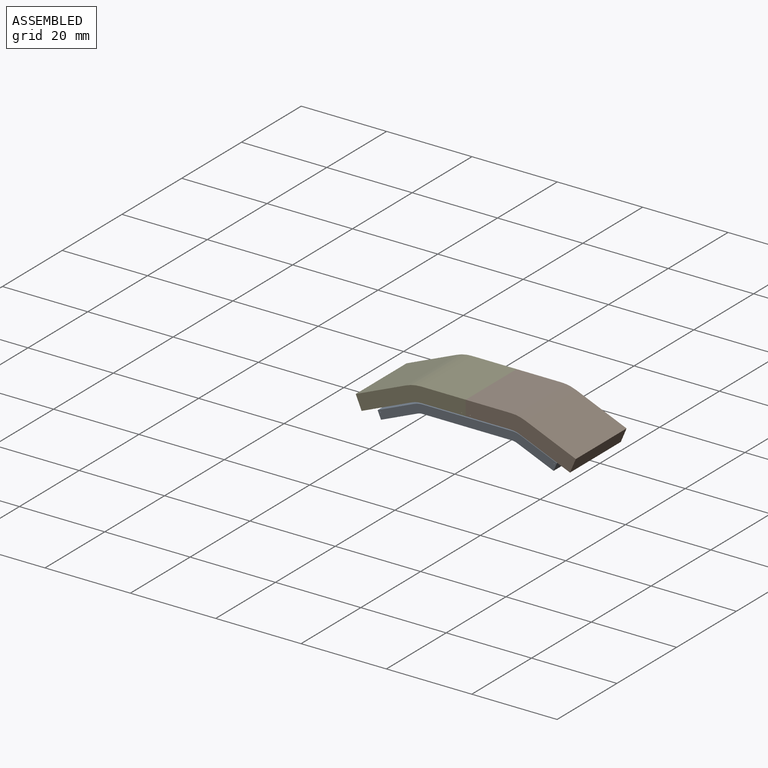
[diagram: assembled view]
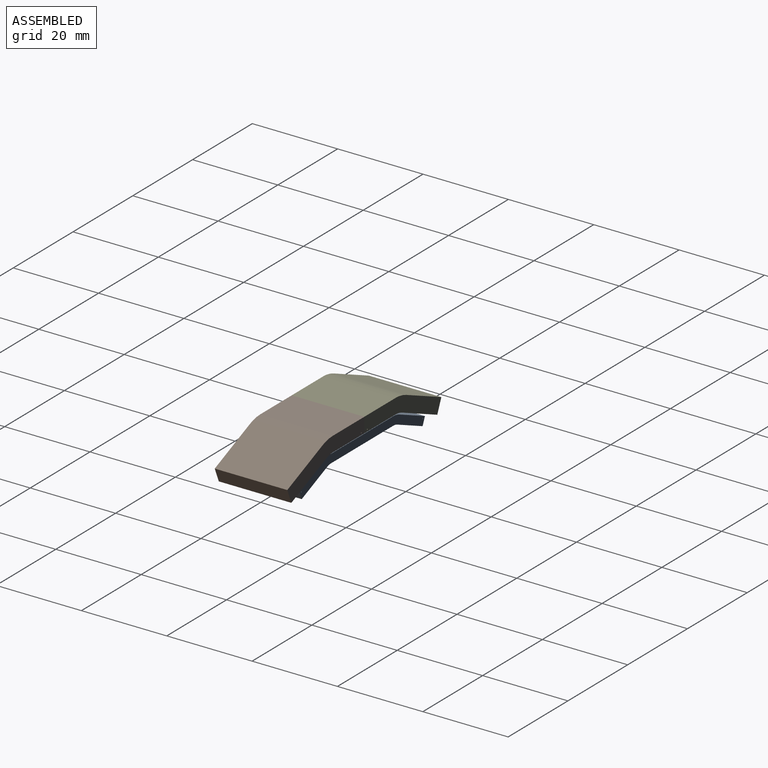
[diagram: assembled view, second angle]
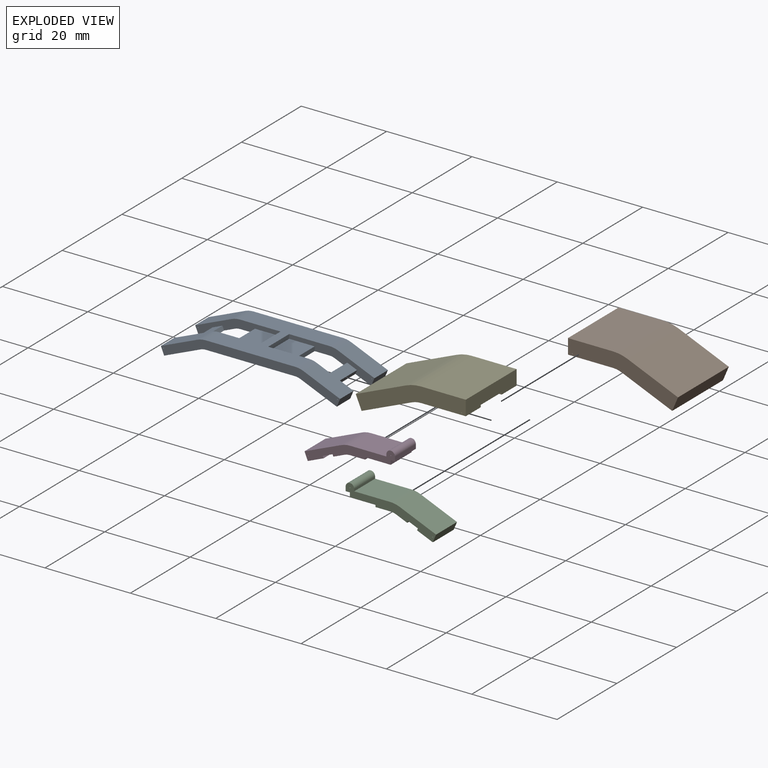
[diagram: exploded view]
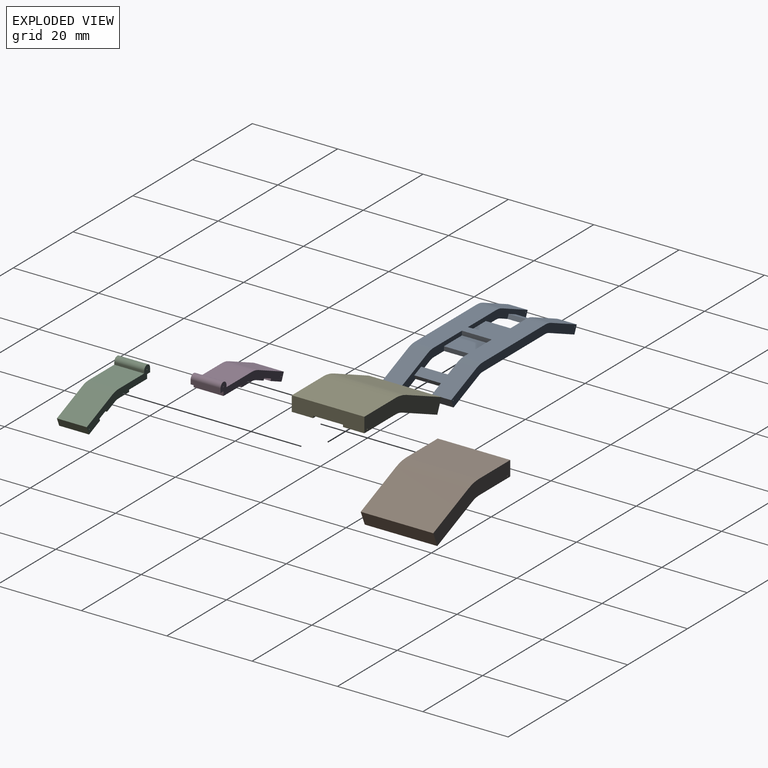
[diagram: exploded view, second angle]
ASSEMBLY  parts=5 mates=4
PART A: 42 faces, bbox 42x16x5.8 mm
  f0: plane 4.5x1.84mm, normal (0.92,0,-0.39), area 9mm2, adj f1,f22,f25,f40
  f1: plane 8.57x4.5mm, normal (0.39,0,0.92), area 41.8mm2, adj f0,f4,f25,f40
  f2: plane 8.57x4.5mm, normal (-0.39,0,0.92), area 41.8mm2, adj f3,f6,f25,f32
  f3: plane 4.5x1.84mm, normal (-0.92,0,-0.39), area 9mm2, adj f2,f18,f25,f32
  f4: cylinder r=5mm len=4.5mm, axis (0,1,0), area 9mm2, adj f1,f5,f25,f40
  f5: plane 20.98x16mm, normal (0,0,1), area 202.8mm2, adj f4,f6,f14,f15,f24,f25,f29,f32
  f6: cylinder r=5mm len=4.5mm, axis (0,1,0), area 9mm2, adj f2,f5,f25,f32
  f7: cylinder r=3mm len=4.5mm, axis (0,1,0), area 5.4mm2, adj f8,f18,f25,f32
  f8: plane 20.98x16mm, normal (0,0,-1), area 286.8mm2, adj f7,f9,f19,f20,f24,f25,f27,f32
  f9: cylinder r=3mm len=4.5mm, axis (0,1,0), area 5.4mm2, adj f8,f22,f25,f40
  f10: cylinder r=0.1mm len=4.5mm, axis (0,1,0), area 2.8mm2, adj f25,f40
  f11: cylinder r=0.1mm len=4.5mm, axis (0,1,0), area 2.8mm2, adj f25,f32
  f12: plane 4.5x1.84mm, normal (0.92,0,-0.39), area 9mm2, adj f13,f22,f24,f41
  f13: plane 8.57x4.5mm, normal (0.39,0,0.92), area 41.8mm2, adj f12,f14,f24,f41
  f14: cylinder r=5mm len=4.5mm, axis (0,1,0), area 9mm2, adj f5,f13,f24,f41
  f15: cylinder r=5mm len=4.5mm, axis (0,1,0), area 9mm2, adj f5,f16,f24,f33
  f16: plane 8.57x4.5mm, normal (-0.39,0,0.92), area 41.8mm2, adj f15,f17,f24,f33
  f17: plane 4.5x1.84mm, normal (-0.92,0,-0.39), area 9mm2, adj f16,f18,f24,f33
  f18: plane 16x8.57mm, normal (0.39,0,-0.92), area 101.2mm2, adj f3,f7,f17,f19,f24,f25,f26,f30
  f19: cylinder r=3mm len=4.5mm, axis (0,1,0), area 5.4mm2, adj f8,f18,f24,f33
  f20: cylinder r=3mm len=4.5mm, axis (0,1,0), area 5.4mm2, adj f8,f22,f24,f41
  f21: cylinder r=0.1mm len=4.5mm, axis (0,1,0), area 2.8mm2, adj f24,f41
  f22: plane 16x8.57mm, normal (-0.39,0,-0.92), area 101.2mm2, adj f0,f9,f12,f20,f24,f25,f34,f36
  f23: cylinder r=0.1mm len=4.5mm, axis (0,1,0), area 2.8mm2, adj f24,f33
  f24: plane 42x5.84mm, normal (0,-1,0), area 85.5mm2, adj f5,f8,f12,f13,f14,f15,f16,f17
  f25: plane 42x5.84mm, normal (0,1,0), area 85.5mm2, adj f0,f1,f2,f3,f4,f5,f6,f7
  f26: plane 7x0.92mm, normal (0.92,0,0.39), area 7mm2, adj f18,f31,f32,f33
  f27: plane 7x1mm, normal (-1,0,0), area 7mm2, adj f8,f28,f32,f33
  f28: plane 7x6mm, normal (0,0,1), area 42mm2, adj f27,f29,f32,f33
  f29: plane 7x1mm, normal (-1,0,0), area 7mm2, adj f5,f28,f32,f33
  f30: plane 7x0.92mm, normal (-0.92,0,-0.39), area 7mm2, adj f18,f31,f32,f33
  f31: plane 7x2.3mm, normal (-0.39,0,0.92), area 17.5mm2, adj f26,f30,f32,f33
  f32: plane 20x5.84mm, normal (0,-1,0), area 32.2mm2, adj f2,f3,f5,f6,f7,f8,f11,f18
  f33: plane 20x5.84mm, normal (0,1,0), area 32.2mm2, adj f5,f8,f15,f16,f17,f18,f19,f23
  f34: plane 7x0.92mm, normal (-0.92,0,0.39), area 7mm2, adj f22,f35,f40,f41
  f35: plane 7x2.3mm, normal (0.39,0,0.92), area 17.5mm2, adj f34,f36,f40,f41
  f36: plane 7x0.92mm, normal (0.92,0,-0.39), area 7mm2, adj f22,f35,f40,f41
  f37: plane 7x1mm, normal (1,0,0), area 7mm2, adj f5,f38,f40,f41
  f38: plane 7x6mm, normal (0,0,1), area 42mm2, adj f37,f39,f40,f41
  f39: plane 7x1mm, normal (1,0,0), area 7mm2, adj f8,f38,f40,f41
  f40: plane 20x5.84mm, normal (0,-1,0), area 32.2mm2, adj f0,f1,f4,f5,f8,f9,f10,f22
  f41: plane 20x5.84mm, normal (0,1,0), area 32.2mm2, adj f5,f8,f12,f13,f14,f20,f21,f22
PART B: 16 faces, bbox 25.8x17x8.9 mm
  f0: cylinder r=0.1mm len=5mm, axis (0,1,0), area 3.1mm2, adj f10,f12
  f1: plane 17x3.5mm, normal (-1,0,0), area 56mm2, adj f2,f7,f9,f10,f11,f12,f14
  f2: plane 17x10.49mm, normal (0,0,-1), area 164.3mm2, adj f1,f3,f9,f10,f11,f12,f13
  f3: cylinder r=5.5mm len=17mm, axis (0,1,0), area 37.3mm2, adj f2,f4,f9,f10
  f4: plane 17x11.8mm, normal (-0.39,0,-0.92), area 217.6mm2, adj f3,f9,f10,f15
  f5: plane 17x11.8mm, normal (0.39,0,0.92), area 217.6mm2, adj f6,f9,f10,f15
  f6: cylinder r=9mm len=17mm, axis (0,1,0), area 61mm2, adj f5,f7,f9,f10
  f7: plane 17x10.49mm, normal (0,0,1), area 178.3mm2, adj f1,f6,f9,f10
  f8: cylinder r=0.1mm len=5mm, axis (0,1,0), area 3.1mm2, adj f9,f11
  f9: plane 25.78x8.9mm, normal (0,-1,0), area 91.6mm2, adj f1,f2,f3,f4,f5,f6,f7,f8
  f10: plane 25.78x8.9mm, normal (0,1,0), area 91.6mm2, adj f0,f1,f2,f3,f4,f5,f6,f7
  f11: plane 2x1.5mm, normal (0,1,0), area 2.5mm2, adj f1,f2,f8,f13,f14
  f12: plane 2x1.5mm, normal (0,-1,0), area 2.5mm2, adj f0,f1,f2,f13,f14
  f13: plane 7x0.5mm, normal (-1,0,0), area 3.5mm2, adj f2,f11,f12,f14
  f14: cylinder r=1mm len=7mm, axis (0,1,0), area 22mm2, adj f1,f11,f12,f13
  f15: plane 17x3.23mm, normal (0.92,0,-0.39), area 59.5mm2, adj f4,f5,f9,f10
PART C: 22 faces, bbox 21.2x7x7.4 mm
  f0: plane 7x1.84mm, normal (0.92,0,-0.39), area 14mm2, adj f1,f18,f20,f21
  f1: plane 8.57x7mm, normal (0.39,0,0.92), area 65.1mm2, adj f0,f2,f20,f21
  f2: cylinder r=5.5mm len=7mm, axis (0,1,0), area 15.3mm2, adj f1,f3,f20,f21
  f3: plane 8.49x7mm, normal (0,0,1), area 59.4mm2, adj f2,f4,f20,f21
  f4: plane 7x0.5mm, normal (1,0,0), area 3.5mm2, adj f3,f5,f20,f21
  f5: cylinder r=1mm len=7mm, axis (0,1,0), area 22mm2, adj f4,f6,f20,f21
  f6: plane 7x1mm, normal (-1,0,0), area 7mm2, adj f5,f7,f20,f21
  f7: plane 7x1mm, normal (0,0,-1), area 7mm2, adj f6,f8,f20,f21
  f8: plane 7x1mm, normal (-1,0,0), area 7mm2, adj f7,f9,f20,f21
  f9: plane 7x6mm, normal (0,0,-1), area 42mm2, adj f8,f10,f20,f21
  f10: plane 7x0.5mm, normal (-1,0,0), area 3.5mm2, adj f9,f11,f20,f21
  f11: plane 7x3.49mm, normal (0,0,-1), area 24.4mm2, adj f10,f12,f20,f21
  f12: cylinder r=3.5mm len=7mm, axis (0,1,0), area 9.8mm2, adj f11,f13,f20,f21
  f13: plane 7x2.58mm, normal (-0.39,0,-0.92), area 19.6mm2, adj f12,f14,f20,f21
  f14: plane 7x0.46mm, normal (0.92,0,-0.39), area 3.5mm2, adj f13,f15,f20,f21
  f15: plane 7x2.3mm, normal (-0.39,0,-0.92), area 17.5mm2, adj f14,f16,f20,f21
  f16: plane 7x0.46mm, normal (-0.92,0,0.39), area 3.5mm2, adj f15,f18,f20,f21
  f17: cylinder r=0.1mm len=7mm, axis (0,1,0), area 4.4mm2, adj f20,f21
  f18: plane 7x3.69mm, normal (-0.39,0,-0.92), area 28mm2, adj f0,f16,f20,f21
  f19: cylinder r=0.1mm len=7mm, axis (0,1,0), area 4.4mm2, adj f20,f21
  f20: plane 21.19x7.38mm, normal (0,-1,0), area 39.9mm2, adj f0,f1,f2,f3,f4,f5,f6,f7
  f21: plane 21.19x7.38mm, normal (0,1,0), area 39.9mm2, adj f0,f1,f2,f3,f4,f5,f6,f7
PART D: 22 faces, bbox 21.2x7x7.4 mm
  f0: plane 7x1.84mm, normal (-0.92,0,-0.39), area 14mm2, adj f1,f18,f20,f21
  f1: plane 8.57x7mm, normal (-0.39,0,0.92), area 65.1mm2, adj f0,f2,f20,f21
  f2: cylinder r=5.5mm len=7mm, axis (0,1,0), area 15.3mm2, adj f1,f3,f20,f21
  f3: plane 8.49x7mm, normal (0,0,1), area 59.4mm2, adj f2,f4,f20,f21
  f4: plane 7x0.5mm, normal (-1,0,0), area 3.5mm2, adj f3,f5,f20,f21
  f5: cylinder r=1mm len=7mm, axis (0,1,0), area 22mm2, adj f4,f6,f20,f21
  f6: plane 7x1mm, normal (1,0,0), area 7mm2, adj f5,f7,f20,f21
  f7: plane 7x1mm, normal (0,0,-1), area 7mm2, adj f6,f8,f20,f21
  f8: plane 7x1mm, normal (1,0,0), area 7mm2, adj f7,f9,f20,f21
  f9: plane 7x6mm, normal (0,0,-1), area 42mm2, adj f8,f10,f20,f21
  f10: plane 7x0.5mm, normal (1,0,0), area 3.5mm2, adj f9,f11,f20,f21
  f11: plane 7x3.49mm, normal (0,0,-1), area 24.4mm2, adj f10,f12,f20,f21
  f12: cylinder r=3.5mm len=7mm, axis (0,1,0), area 9.8mm2, adj f11,f13,f20,f21
  f13: plane 7x2.58mm, normal (0.39,0,-0.92), area 19.6mm2, adj f12,f14,f20,f21
  f14: plane 7x0.46mm, normal (-0.92,0,-0.39), area 3.5mm2, adj f13,f15,f20,f21
  f15: plane 7x2.3mm, normal (0.39,0,-0.92), area 17.5mm2, adj f14,f16,f20,f21
  f16: plane 7x0.46mm, normal (0.92,0,0.39), area 3.5mm2, adj f15,f18,f20,f21
  f17: cylinder r=0.1mm len=7mm, axis (0,1,0), area 4.4mm2, adj f20,f21
  f18: plane 7x3.69mm, normal (0.39,0,-0.92), area 28mm2, adj f0,f16,f20,f21
  f19: cylinder r=0.1mm len=7mm, axis (0,1,0), area 4.4mm2, adj f20,f21
  f20: plane 21.19x7.38mm, normal (0,-1,0), area 39.9mm2, adj f0,f1,f2,f3,f4,f5,f6,f7
  f21: plane 21.19x7.38mm, normal (0,1,0), area 39.9mm2, adj f0,f1,f2,f3,f4,f5,f6,f7
PART E: 16 faces, bbox 25.8x17x8.9 mm
  f0: cylinder r=0.1mm len=5mm, axis (0,1,0), area 3.1mm2, adj f10,f12
  f1: plane 17x3.5mm, normal (1,0,0), area 56mm2, adj f2,f7,f9,f10,f11,f12,f14
  f2: plane 17x10.49mm, normal (0,0,-1), area 164.3mm2, adj f1,f3,f9,f10,f11,f12,f13
  f3: cylinder r=5.5mm len=17mm, axis (0,1,0), area 37.3mm2, adj f2,f4,f9,f10
  f4: plane 17x11.8mm, normal (0.39,0,-0.92), area 217.6mm2, adj f3,f9,f10,f15
  f5: plane 17x11.8mm, normal (-0.39,0,0.92), area 217.6mm2, adj f6,f9,f10,f15
  f6: cylinder r=9mm len=17mm, axis (0,1,0), area 61mm2, adj f5,f7,f9,f10
  f7: plane 17x10.49mm, normal (0,0,1), area 178.3mm2, adj f1,f6,f9,f10
  f8: cylinder r=0.1mm len=5mm, axis (0,1,0), area 3.1mm2, adj f9,f11
  f9: plane 25.78x8.9mm, normal (0,-1,0), area 91.6mm2, adj f1,f2,f3,f4,f5,f6,f7,f8
  f10: plane 25.78x8.9mm, normal (0,1,0), area 91.6mm2, adj f0,f1,f2,f3,f4,f5,f6,f7
  f11: plane 2x1.5mm, normal (0,1,0), area 2.5mm2, adj f1,f2,f8,f13,f14
  f12: plane 2x1.5mm, normal (0,-1,0), area 2.5mm2, adj f0,f1,f2,f13,f14
  f13: plane 7x0.5mm, normal (1,0,0), area 3.5mm2, adj f2,f11,f12,f14
  f14: cylinder r=1mm len=7mm, axis (0,1,0), area 22mm2, adj f1,f11,f12,f13
  f15: plane 17x3.23mm, normal (-0.92,0,-0.39), area 59.5mm2, adj f4,f5,f9,f10
PLACE A t=(-4.51,-1.37,2.77)mm fixed
PLACE B t=(-4.51,-1.37,2.77)mm
PLACE C t=(-4.51,-1.37,2.77)mm
PLACE D t=(-4.51,-1.37,2.77)mm
PLACE E t=(-4.51,-1.37,2.77)mm
MATE revolute D.f17 <-> A.f11  axis (0,-1,0) through (-24.85,-4.87,-1.5)mm
MATE revolute E.f0 <-> D.f5  axis (0,-1,0) through (-5.51,2.13,3.77)mm
MATE revolute B.f0 <-> C.f5  axis (0,1,0) through (-3.51,-4.87,3.77)mm
MATE revolute C.f17 <-> A.f10  axis (0,-1,0) through (15.84,-4.87,-1.5)mm
